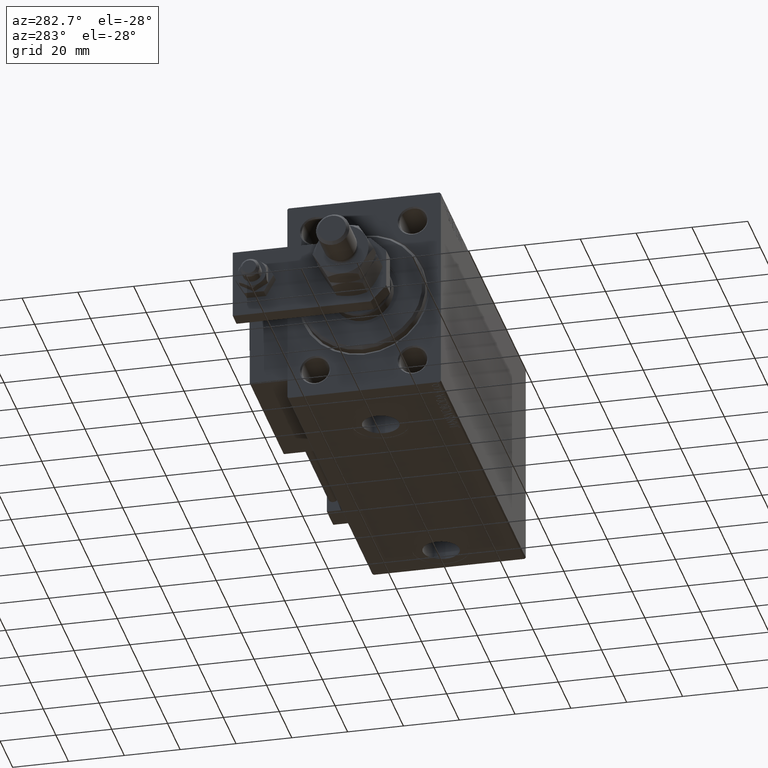
[diagram: clean part render]
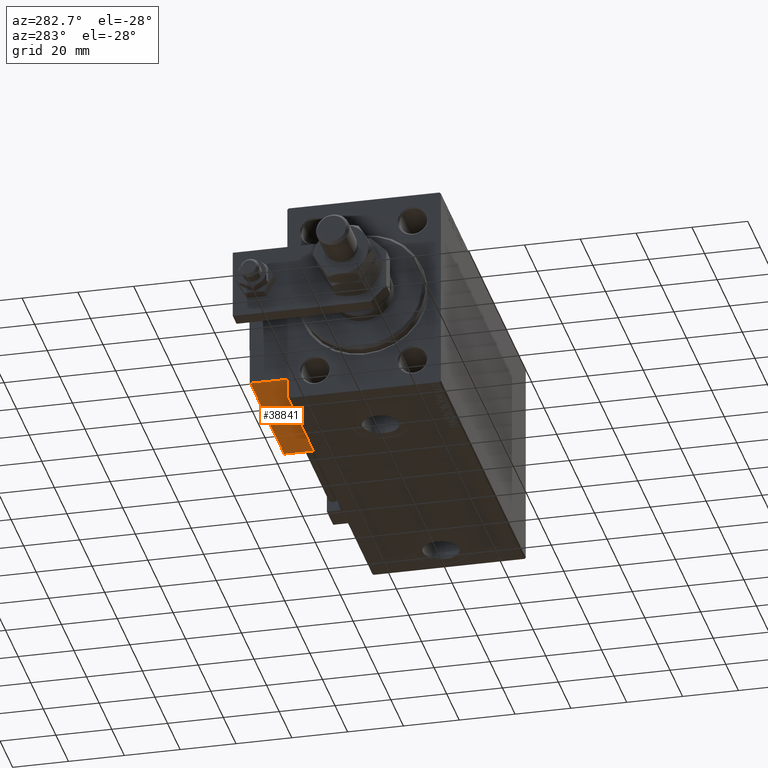
[diagram: same view with one face highlighted and labeled with its STEP entity id]
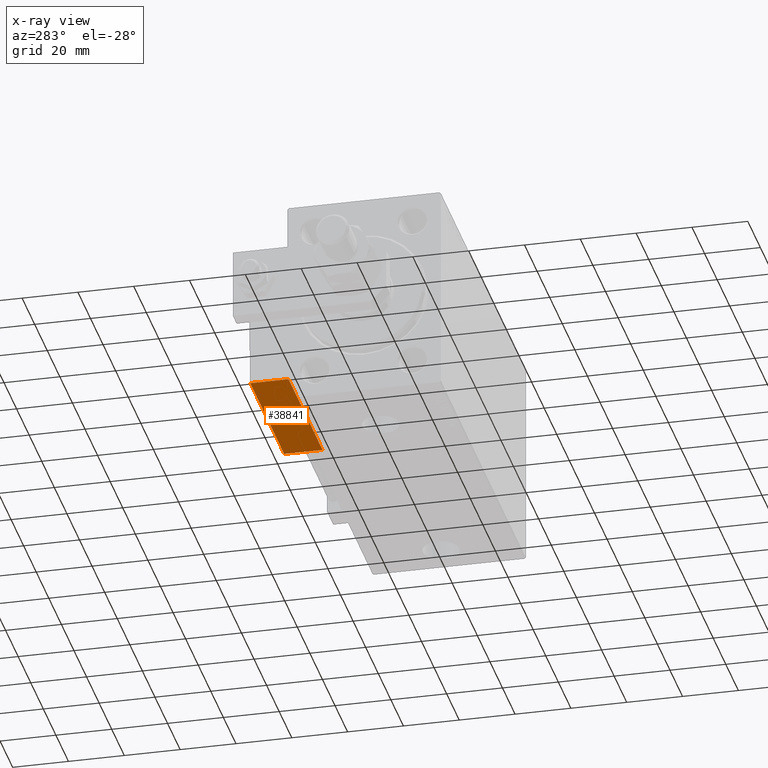
[diagram: x-ray of the same camera — body ghosted, the highlighted face saturated]
A machine part, auxiliary view. The second image highlights one B-rep face of the part: STEP entity #38841.
The next image is the same camera in x-ray: the body ghosted, the highlighted face saturated — about 0% of this face is hidden behind the body in this view.
In plain terms, the highlighted planar face has unit normal (0, 0, 1).
Its self-contained STEP definition (entity closure, byte-faithful):
#141 = LINE ( 'NONE', #7917, #43419 ) ;
#936 = CARTESIAN_POINT ( 'NONE',  ( 27.00000000000006395, 20.00000000000001776, 14.00000000000000000 ) ) ;
#1641 = CARTESIAN_POINT ( 'NONE',  ( 27.00000000000006395, 20.00000000000001776, 0.000000000000000000 ) ) ;
#2462 = DIRECTION ( 'NONE',  ( -0.000000000000000000, -0.000000000000000000, -1.000000000000000000 ) ) ;
#3272 = CARTESIAN_POINT ( 'NONE',  ( 27.00000000000006395, 20.00000000000001776, 13.70000000000000107 ) ) ;
#3781 = CARTESIAN_POINT ( 'NONE',  ( -26.99999999999993605, 20.00000000000002132, 14.00000000000000000 ) ) ;
#5486 = VERTEX_POINT ( 'NONE', #3272 ) ;
#6059 = EDGE_LOOP ( 'NONE', ( #23182, #23894, #8876, #43335 ) ) ;
#7720 = VECTOR ( 'NONE', #13463, 1000.000000000000000 ) ;
#7917 = CARTESIAN_POINT ( 'NONE',  ( 27.00000000000006395, 20.00000000000001776, 0.000000000000000000 ) ) ;
#8180 = DIRECTION ( 'NONE',  ( 1.000000000000000000, -6.424901762877063495E-17, 0.000000000000000000 ) ) ;
#8876 = ORIENTED_EDGE ( 'NONE', *, *, #12698, .T. ) ;
#10485 = CARTESIAN_POINT ( 'NONE',  ( 27.00000000000006395, 20.00000000000001776, 14.00000000000000000 ) ) ;
#10665 = AXIS2_PLACEMENT_3D ( 'NONE', #936, #32261, #8180 ) ;
#11010 = LINE ( 'NONE', #3781, #30664 ) ;
#12135 = EDGE_CURVE ( 'NONE', #19958, #46890, #11010, .T. ) ;
#12579 = CARTESIAN_POINT ( 'NONE',  ( -26.99999999999993605, 20.00000000000002132, 13.70000000000000107 ) ) ;
#12698 = EDGE_CURVE ( 'NONE', #5486, #29366, #51162, .T. ) ;
#13463 = DIRECTION ( 'NONE',  ( 1.000000000000000000, -6.424901762877063495E-17, -0.000000000000000000 ) ) ;
#17721 = EDGE_CURVE ( 'NONE', #29366, #46890, #141, .T. ) ;
#19958 = VERTEX_POINT ( 'NONE', #12579 ) ;
#20466 = DIRECTION ( 'NONE',  ( -1.000000000000000000, 6.424901762877062263E-17, 0.000000000000000000 ) ) ;
#23182 = ORIENTED_EDGE ( 'NONE', *, *, #12135, .F. ) ;
#23894 = ORIENTED_EDGE ( 'NONE', *, *, #41324, .T. ) ;
#25996 = CARTESIAN_POINT ( 'NONE',  ( 27.00000000000006395, 20.00000000000001776, 13.70000000000000107 ) ) ;
#29366 = VERTEX_POINT ( 'NONE', #1641 ) ;
#30664 = VECTOR ( 'NONE', #47947, 1000.000000000000000 ) ;
#32261 = DIRECTION ( 'NONE',  ( -6.424901762877063495E-17, -1.000000000000000000, 0.000000000000000000 ) ) ;
#37077 = FACE_OUTER_BOUND ( 'NONE', #6059, .T. ) ;
#37604 = PLANE ( 'NONE',  #10665 ) ;
#38841 = ADVANCED_FACE ( 'NONE', ( #37077 ), #37604, .F. ) ;
#41324 = EDGE_CURVE ( 'NONE', #19958, #5486, #46374, .T. ) ;
#43335 = ORIENTED_EDGE ( 'NONE', *, *, #17721, .T. ) ;
#43419 = VECTOR ( 'NONE', #20466, 1000.000000000000000 ) ;
#46077 = VECTOR ( 'NONE', #2462, 1000.000000000000000 ) ;
#46374 = LINE ( 'NONE', #25996, #7720 ) ;
#46890 = VERTEX_POINT ( 'NONE', #52215 ) ;
#47947 = DIRECTION ( 'NONE',  ( -0.000000000000000000, -0.000000000000000000, -1.000000000000000000 ) ) ;
#51162 = LINE ( 'NONE', #10485, #46077 ) ;
#52215 = CARTESIAN_POINT ( 'NONE',  ( -26.99999999999993605, 20.00000000000002132, 0.000000000000000000 ) ) ;